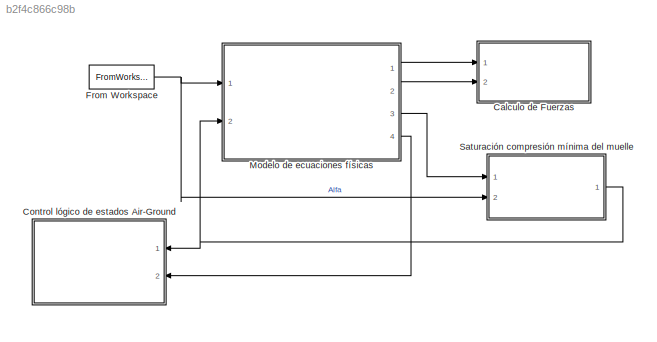
MODEL slx_b2f4c866c98b
KIND model
CONFIG AbsTol = auto
CONFIG EnableMultiTasking = off
CONFIG FixedStep = auto
CONFIG MaxStep = auto
CONFIG MinStep = auto
CONFIG RelTol = 1e-1
CONFIG SampleTimeConstraint = Unconstrained
CONFIG Solver = VariableStepAuto
CONFIG SolverName = VariableStepAuto
CONFIG StartTime = 0.0
CONFIG StopTime = tc
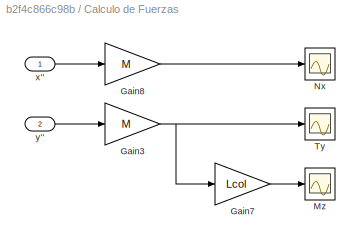
BLOCK [SubSystem] Calculo de Fuerzas
  Ports = [2]
  RequestExecContextInheritance = off
BLOCK [Gain] Calculo de Fuerzas/Gain3
  Gain = M
  OutDataTypeStr = Inherit: Inherit via internal rule
  ParamDataTypeStr = Inherit: Inherit via internal rule
  SaturateOnIntegerOverflow = off
BLOCK [Gain] Calculo de Fuerzas/Gain7
  Gain = Lcol
  OutDataTypeStr = Inherit: Inherit via internal rule
  ParamDataTypeStr = Inherit: Inherit via internal rule
  SaturateOnIntegerOverflow = off
BLOCK [Gain] Calculo de Fuerzas/Gain8
  Gain = M
  OutDataTypeStr = Inherit: Inherit via internal rule
  ParamDataTypeStr = Inherit: Inherit via internal rule
  SaturateOnIntegerOverflow = off
BLOCK [Scope] Calculo de Fuerzas/Mz
  Floating = off
  NumInputPorts = 1
  Ports = [1]
  ScopeSpecificationString = Simulink.scopes.TimeScopeBlockCfg('CurrentConfiguration', extmgr.ConfigurationSet(extmgr.Configuration('Core','General UI',true),extmgr.Configuration('Core','Source UI',true),extmgr.Configuration('Sources','WiredSimulink',true,'DataLoggingVariableName','Mz','DataLogging',true,'DataLoggingSaveFormat','Array'),extmgr.Configuration('Visuals','Time Domain',true,'SerializedDisplays',{struct('MinYLimRea...<+1492ch>
BLOCK [Scope] Calculo de Fuerzas/Nx
  Floating = off
  NumInputPorts = 1
  Ports = [1]
  ScopeSpecificationString = Simulink.scopes.TimeScopeBlockCfg('CurrentConfiguration', extmgr.ConfigurationSet(extmgr.Configuration('Core','General UI',true),extmgr.Configuration('Core','Source UI',true),extmgr.Configuration('Sources','WiredSimulink',true,'DataLoggingVariableName','Nx','DataLogging',true,'DataLoggingSaveFormat','Array'),extmgr.Configuration('Visuals','Time Domain',true,'SerializedDisplays',{struct('MinYLimRea...<+1478ch>
BLOCK [Scope] Calculo de Fuerzas/Ty
  Floating = off
  NumInputPorts = 1
  Ports = [1]
  ScopeSpecificationString = Simulink.scopes.TimeScopeBlockCfg('CurrentConfiguration', extmgr.ConfigurationSet(extmgr.Configuration('Core','General UI',true),extmgr.Configuration('Core','Source UI',true),extmgr.Configuration('Sources','WiredSimulink',true,'DataLoggingVariableName','Ty','DataLogging',true,'DataLoggingSaveFormat','Array'),extmgr.Configuration('Visuals','Time Domain',true,'SerializedDisplays',{struct('MinYLimRea...<+1492ch>
BLOCK [Inport] Calculo de Fuerzas/x''
  IconDisplay = Port number
BLOCK [Inport] Calculo de Fuerzas/y''
  IconDisplay = Port number
  Port = 2
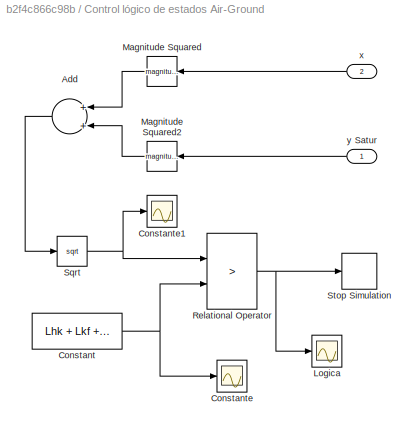
BLOCK [SubSystem] Control lógico de estados Air-Ground
  Ports = [2]
  RequestExecContextInheritance = off
BLOCK [Sum] Control lógico de estados Air-Ground/Add
  InputSameDT = off
  OutDataTypeStr = Inherit: Inherit via internal rule
  Ports = [2, 1]
  SaturateOnIntegerOverflow = off
BLOCK [Constant] Control lógico de estados Air-Ground/Constant
  Value = Lhk + Lkf + 0.005
BLOCK [Scope] Control lógico de estados Air-Ground/Constante
  Floating = off
  NumInputPorts = 1
  Ports = [1]
  ScopeSpecificationString = Simulink.scopes.TimeScopeBlockCfg('CurrentConfiguration', extmgr.ConfigurationSet(extmgr.Configuration('Core','General UI',true),extmgr.Configuration('Core','Source UI',true),extmgr.Configuration('Sources','WiredSimulink',true,'DataLoggingVariableName','ScopeData1','DataLoggingSaveFormat','Array'),extmgr.Configuration('Visuals','Time Domain',true,'SerializedDisplays',{struct('MinYLimReal','0.465',...<+1477ch>
BLOCK [Scope] Control lógico de estados Air-Ground/Constante1
  Floating = off
  NumInputPorts = 1
  Ports = [1]
  ScopeSpecificationString = Simulink.scopes.TimeScopeBlockCfg('CurrentConfiguration', extmgr.ConfigurationSet(extmgr.Configuration('Core','General UI',true),extmgr.Configuration('Core','Source UI',true),extmgr.Configuration('Sources','WiredSimulink',true,'DataLoggingVariableName','ScopeData2','DataLoggingSaveFormat','Array'),extmgr.Configuration('Visuals','Time Domain',true,'SerializedDisplays',{struct('MinYLimReal','0.53983...<+1489ch>
BLOCK [Scope] Control lógico de estados Air-Ground/Logica
  Floating = off
  NumInputPorts = 1
  Ports = [1]
  ScopeSpecificationString = Simulink.scopes.TimeScopeBlockCfg('CurrentConfiguration', extmgr.ConfigurationSet(extmgr.Configuration('Core','General UI',true),extmgr.Configuration('Core','Source UI',true),extmgr.Configuration('Sources','WiredSimulink',true,'DataLoggingSaveFormat','Array','DataLoggingVariableName','ScopeData1'),extmgr.Configuration('Visuals','Time Domain',true,'SerializedDisplays',{struct('MinYLimReal','0.9','M...<+1472ch>
BLOCK [Math] Control lógico de estados Air-Ground/Magnitude Squared
  Operator = magnitude^2
  Ports = [1, 1]
BLOCK [Math] Control lógico de estados Air-Ground/Magnitude Squared2
  Operator = magnitude^2
  Ports = [1, 1]
BLOCK [RelationalOperator] Control lógico de estados Air-Ground/Relational Operator
  InputSameDT = off
  Operator = >
  OutDataTypeStr = boolean
  Ports = [2, 1]
  RndMeth = Simplest
BLOCK [Sqrt] Control lógico de estados Air-Ground/Sqrt
BLOCK [Stop] Control lógico de estados Air-Ground/Stop Simulation
BLOCK [Inport] Control lógico de estados Air-Ground/x
  IconDisplay = Port number
  Port = 2
BLOCK [Inport] Control lógico de estados Air-Ground/y Satur
  IconDisplay = Port number
BLOCK [FromWorkspace] From Workspace
  SampleTime = 0
  VariableName = alfa_t
  ZeroCross = on
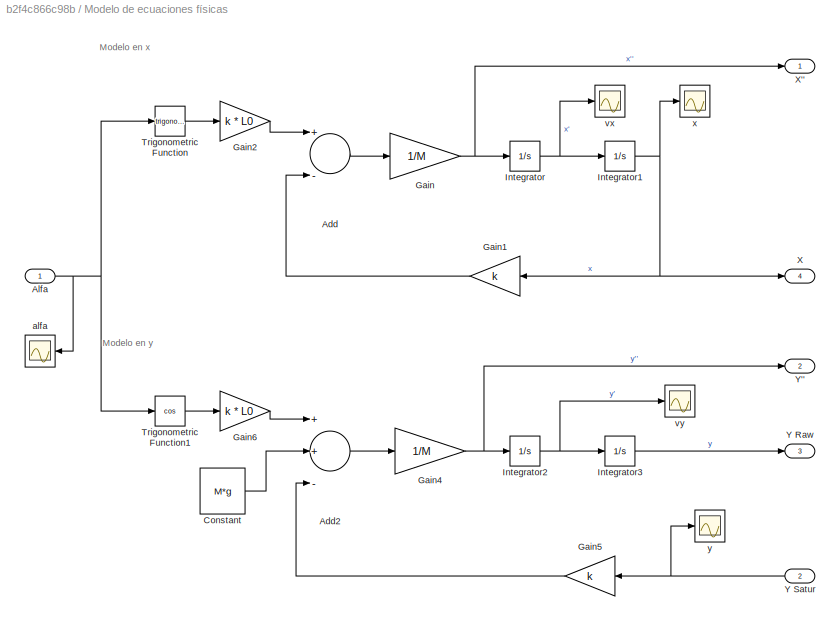
BLOCK [SubSystem] Modelo de ecuaciones físicas
  Ports = [2, 4]
  RequestExecContextInheritance = off
BLOCK [Sum] Modelo de ecuaciones físicas/Add
  InputSameDT = off
  Inputs = +-
  OutDataTypeStr = Inherit: Inherit via internal rule
  Ports = [2, 1]
  SaturateOnIntegerOverflow = off
BLOCK [Sum] Modelo de ecuaciones físicas/Add2
  InputSameDT = off
  Inputs = ++-
  OutDataTypeStr = Inherit: Inherit via internal rule
  Ports = [3, 1]
  SaturateOnIntegerOverflow = off
BLOCK [Inport] Modelo de ecuaciones físicas/Alfa
  IconDisplay = Port number
BLOCK [Constant] Modelo de ecuaciones físicas/Constant
  Value = M*g
BLOCK [Gain] Modelo de ecuaciones físicas/Gain
  Gain = 1/M
  OutDataTypeStr = Inherit: Inherit via internal rule
  ParamDataTypeStr = Inherit: Inherit via internal rule
  SaturateOnIntegerOverflow = off
BLOCK [Gain] Modelo de ecuaciones físicas/Gain1
  Gain = k
  OutDataTypeStr = Inherit: Inherit via internal rule
  ParamDataTypeStr = Inherit: Inherit via internal rule
  SaturateOnIntegerOverflow = off
BLOCK [Gain] Modelo de ecuaciones físicas/Gain2
  Gain = k * L0
  OutDataTypeStr = Inherit: Inherit via internal rule
  ParamDataTypeStr = Inherit: Inherit via internal rule
  SaturateOnIntegerOverflow = off
BLOCK [Gain] Modelo de ecuaciones físicas/Gain4
  Gain = 1/M
  OutDataTypeStr = Inherit: Inherit via internal rule
  ParamDataTypeStr = Inherit: Inherit via internal rule
  SaturateOnIntegerOverflow = off
BLOCK [Gain] Modelo de ecuaciones físicas/Gain5
  Gain = k
  OutDataTypeStr = Inherit: Inherit via internal rule
  ParamDataTypeStr = Inherit: Inherit via internal rule
  SaturateOnIntegerOverflow = off
BLOCK [Gain] Modelo de ecuaciones físicas/Gain6
  Gain = k * L0
  OutDataTypeStr = Inherit: Inherit via internal rule
  ParamDataTypeStr = Inherit: Inherit via internal rule
  SaturateOnIntegerOverflow = off
BLOCK [Integrator] Modelo de ecuaciones físicas/Integrator
  InitialCondition = vx0
  Ports = [1, 1]
BLOCK [Integrator] Modelo de ecuaciones físicas/Integrator1
  InitialCondition = x0
  Ports = [1, 1]
BLOCK [Integrator] Modelo de ecuaciones físicas/Integrator2
  InitialCondition = vy0
  Ports = [1, 1]
BLOCK [Integrator] Modelo de ecuaciones físicas/Integrator3
  InitialCondition = y0
  Ports = [1, 1]
BLOCK [Trigonometry] Modelo de ecuaciones físicas/Trigonometric Function
  Ports = [1, 1]
BLOCK [Trigonometry] Modelo de ecuaciones físicas/Trigonometric Function1
  Operator = cos
  Ports = [1, 1]
BLOCK [Outport] Modelo de ecuaciones físicas/X
  IconDisplay = Port number
  Port = 4
BLOCK [Outport] Modelo de ecuaciones físicas/X''
  IconDisplay = Port number
BLOCK [Outport] Modelo de ecuaciones físicas/Y Raw
  IconDisplay = Port number
  Port = 3
BLOCK [Inport] Modelo de ecuaciones físicas/Y Satur
  IconDisplay = Port number
  Port = 2
BLOCK [Outport] Modelo de ecuaciones físicas/Y''
  IconDisplay = Port number
  Port = 2
BLOCK [Scope] Modelo de ecuaciones físicas/alfa
  Floating = off
  NumInputPorts = 1
  Ports = [1]
  ScopeSpecificationString = Simulink.scopes.TimeScopeBlockCfg('CurrentConfiguration', extmgr.ConfigurationSet(extmgr.Configuration('Core','General UI',true),extmgr.Configuration('Core','Source UI',true),extmgr.Configuration('Sources','WiredSimulink',true,'DataLoggingVariableName','ScopeData4'),extmgr.Configuration('Visuals','Time Domain',true,'SerializedDisplays',{struct('MinYLimReal','-105.61129','MaxYLimReal','12.31636','Y...<+1402ch>
BLOCK [Scope] Modelo de ecuaciones físicas/vx
  Floating = off
  NumInputPorts = 1
  Ports = [1]
  ScopeSpecificationString = Simulink.scopes.TimeScopeBlockCfg('CurrentConfiguration', extmgr.ConfigurationSet(extmgr.Configuration('Core','General UI',true),extmgr.Configuration('Core','Source UI',true),extmgr.Configuration('Sources','WiredSimulink',true,'DataLoggingVariableName','vxSlip','DataLogging',true,'DataLoggingSaveFormat','Array'),extmgr.Configuration('Visuals','Time Domain',true,'SerializedDisplays',{struct('MinYLi...<+1406ch>
BLOCK [Scope] Modelo de ecuaciones físicas/vy
  Floating = off
  NumInputPorts = 1
  Ports = [1]
  ScopeSpecificationString = Simulink.scopes.TimeScopeBlockCfg('CurrentConfiguration', extmgr.ConfigurationSet(extmgr.Configuration('Core','General UI',true),extmgr.Configuration('Core','Source UI',true),extmgr.Configuration('Sources','WiredSimulink',true,'DataLoggingVariableName','vySlip','DataLogging',true,'DataLoggingSaveFormat','Array'),extmgr.Configuration('Visuals','Time Domain',true,'SerializedDisplays',{struct('MinYLi...<+1409ch>
BLOCK [Scope] Modelo de ecuaciones físicas/x
  Floating = off
  NumInputPorts = 1
  Ports = [1]
  ScopeSpecificationString = Simulink.scopes.TimeScopeBlockCfg('CurrentConfiguration', extmgr.ConfigurationSet(extmgr.Configuration('Core','General UI',true),extmgr.Configuration('Core','Source UI',true),extmgr.Configuration('Sources','WiredSimulink',true,'DataLogging',true,'DataLoggingVariableName','xSlip','DataLoggingSaveFormat','Array'),extmgr.Configuration('Visuals','Time Domain',true,'SerializedDisplays',{struct('MinYLim...<+1402ch>
BLOCK [Scope] Modelo de ecuaciones físicas/y
  Floating = off
  NumInputPorts = 1
  Ports = [1]
  ScopeSpecificationString = Simulink.scopes.TimeScopeBlockCfg('CurrentConfiguration', extmgr.ConfigurationSet(extmgr.Configuration('Core','General UI',true),extmgr.Configuration('Core','Source UI',true),extmgr.Configuration('Sources','WiredSimulink',true,'DataLogging',true,'DataLoggingSaveFormat','Array','DataLoggingVariableName','ySlip'),extmgr.Configuration('Visuals','Time Domain',true,'SerializedDisplays',{struct('MinYLim...<+1465ch>
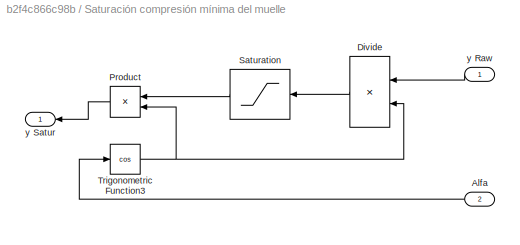
BLOCK [SubSystem] Saturación compresión mínima del muelle
  Ports = [2, 1]
  RequestExecContextInheritance = off
BLOCK [Inport] Saturación compresión mínima del muelle/Alfa
  IconDisplay = Port number
  Port = 2
BLOCK [Product] Saturación compresión mínima del muelle/Divide
  InputSameDT = off
  Inputs = */
  OutDataTypeStr = Inherit: Inherit via internal rule
  Ports = [2, 1]
  RndMeth = Floor
  SaturateOnIntegerOverflow = off
BLOCK [Product] Saturación compresión mínima del muelle/Product
  InputSameDT = off
  OutDataTypeStr = Inherit: Inherit via internal rule
  Ports = [2, 1]
  RndMeth = Floor
  SaturateOnIntegerOverflow = off
BLOCK [Saturate] Saturación compresión mínima del muelle/Saturation
  InputPortMap = u0
  LowerLimit = -inf
  Ports = [1, 1]
  UpperLimit = inf
BLOCK [Trigonometry] Saturación compresión mínima del muelle/Trigonometric Function3
  Operator = cos
  Ports = [1, 1]
BLOCK [Inport] Saturación compresión mínima del muelle/y Raw
  IconDisplay = Port number
BLOCK [Outport] Saturación compresión mínima del muelle/y Satur
  IconDisplay = Port number
ANNOTATION Modelo de ecuaciones físicas: Modelo en x
ANNOTATION Modelo de ecuaciones físicas: Modelo en y
NET Calculo de Fuerzas/Gain3:1 -> Calculo de Fuerzas/Gain7:1, Calculo de Fuerzas/Ty:1
LINE Calculo de Fuerzas/Gain7:1 -> Calculo de Fuerzas/Mz:1
LINE Calculo de Fuerzas/Gain8:1 -> Calculo de Fuerzas/Nx:1
LINE Calculo de Fuerzas/x'':1 -> Calculo de Fuerzas/Gain8:1
LINE Calculo de Fuerzas/y'':1 -> Calculo de Fuerzas/Gain3:1
LINE Control lógico de estados Air-Ground/Add:1 -> Control lógico de estados Air-Ground/Sqrt:1
NET Control lógico de estados Air-Ground/Constant:1 -> Control lógico de estados Air-Ground/Constante:1, Control lógico de estados Air-Ground/Relational Operator:2
LINE Control lógico de estados Air-Ground/Magnitude Squared2:1 -> Control lógico de estados Air-Ground/Add:2
LINE Control lógico de estados Air-Ground/Magnitude Squared:1 -> Control lógico de estados Air-Ground/Add:1
NET Control lógico de estados Air-Ground/Relational Operator:1 -> Control lógico de estados Air-Ground/Logica:1, Control lógico de estados Air-Ground/Stop Simulation:1
NET Control lógico de estados Air-Ground/Sqrt:1 -> Control lógico de estados Air-Ground/Constante1:1, Control lógico de estados Air-Ground/Relational Operator:1
LINE Control lógico de estados Air-Ground/x:1 -> Control lógico de estados Air-Ground/Magnitude Squared:1
LINE Control lógico de estados Air-Ground/y Satur:1 -> Control lógico de estados Air-Ground/Magnitude Squared2:1
NET From Workspace:1 -> Modelo de ecuaciones físicas:1, Saturación compresión mínima del muelle:2
LINE Modelo de ecuaciones físicas/Add2:1 -> Modelo de ecuaciones físicas/Gain4:1
LINE Modelo de ecuaciones físicas/Add:1 -> Modelo de ecuaciones físicas/Gain:1
NET Modelo de ecuaciones físicas/Alfa:1 -> Modelo de ecuaciones físicas/Trigonometric Function1:1, Modelo de ecuaciones físicas/Trigonometric Function:1, Modelo de ecuaciones físicas/alfa:1
LINE Modelo de ecuaciones físicas/Constant:1 -> Modelo de ecuaciones físicas/Add2:2
LINE Modelo de ecuaciones físicas/Gain1:1 -> Modelo de ecuaciones físicas/Add:2
LINE Modelo de ecuaciones físicas/Gain2:1 -> Modelo de ecuaciones físicas/Add:1
NET Modelo de ecuaciones físicas/Gain4:1 -> Modelo de ecuaciones físicas/Integrator2:1, Modelo de ecuaciones físicas/Y'':1
LINE Modelo de ecuaciones físicas/Gain5:1 -> Modelo de ecuaciones físicas/Add2:3
LINE Modelo de ecuaciones físicas/Gain6:1 -> Modelo de ecuaciones físicas/Add2:1
NET Modelo de ecuaciones físicas/Gain:1 -> Modelo de ecuaciones físicas/Integrator:1, Modelo de ecuaciones físicas/X'':1
NET Modelo de ecuaciones físicas/Integrator1:1 -> Modelo de ecuaciones físicas/Gain1:1, Modelo de ecuaciones físicas/X:1, Modelo de ecuaciones físicas/x:1
NET Modelo de ecuaciones físicas/Integrator2:1 -> Modelo de ecuaciones físicas/Integrator3:1, Modelo de ecuaciones físicas/vy:1
LINE Modelo de ecuaciones físicas/Integrator3:1 -> Modelo de ecuaciones físicas/Y Raw:1
NET Modelo de ecuaciones físicas/Integrator:1 -> Modelo de ecuaciones físicas/Integrator1:1, Modelo de ecuaciones físicas/vx:1
LINE Modelo de ecuaciones físicas/Trigonometric Function1:1 -> Modelo de ecuaciones físicas/Gain6:1
LINE Modelo de ecuaciones físicas/Trigonometric Function:1 -> Modelo de ecuaciones físicas/Gain2:1
NET Modelo de ecuaciones físicas/Y Satur:1 -> Modelo de ecuaciones físicas/Gain5:1, Modelo de ecuaciones físicas/y:1
LINE Modelo de ecuaciones físicas:1 -> Calculo de Fuerzas:1
LINE Modelo de ecuaciones físicas:2 -> Calculo de Fuerzas:2
LINE Modelo de ecuaciones físicas:3 -> Saturación compresión mínima del muelle:1
LINE Modelo de ecuaciones físicas:4 -> Control lógico de estados Air-Ground:2
LINE Saturación compresión mínima del muelle/Alfa:1 -> Saturación compresión mínima del muelle/Trigonometric Function3:1
LINE Saturación compresión mínima del muelle/Divide:1 -> Saturación compresión mínima del muelle/Saturation:1
LINE Saturación compresión mínima del muelle/Product:1 -> Saturación compresión mínima del muelle/y Satur:1
LINE Saturación compresión mínima del muelle/Saturation:1 -> Saturación compresión mínima del muelle/Product:1
NET Saturación compresión mínima del muelle/Trigonometric Function3:1 -> Saturación compresión mínima del muelle/Divide:2, Saturación compresión mínima del muelle/Product:2
LINE Saturación compresión mínima del muelle/y Raw:1 -> Saturación compresión mínima del muelle/Divide:1
NET Saturación compresión mínima del muelle:1 -> Control lógico de estados Air-Ground:1, Modelo de ecuaciones físicas:2
note: NET lines group one-source signal fan-out (src -> all destinations, sorted); 1:1 wires keep LINE
